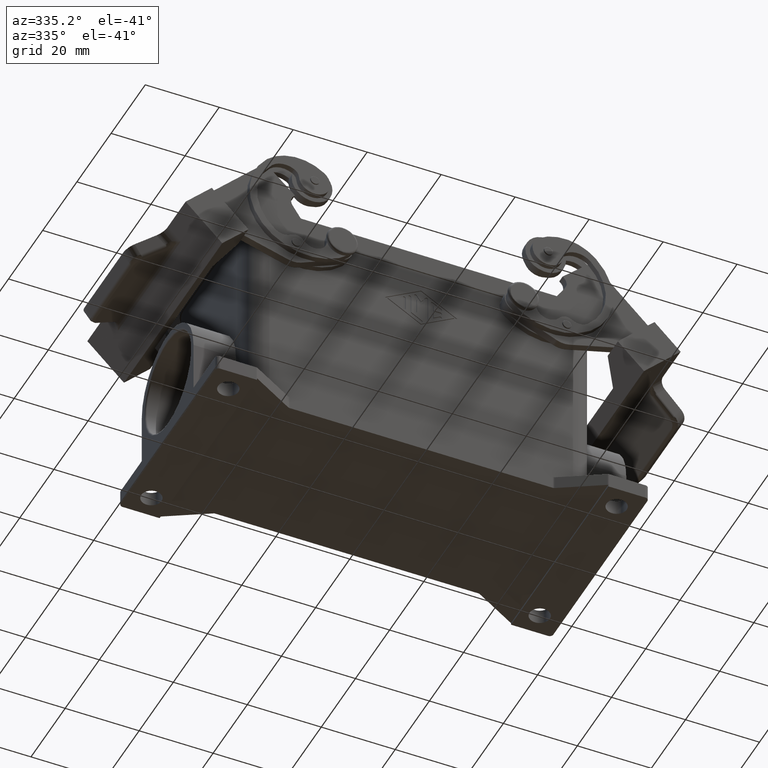
[diagram: clean part render]
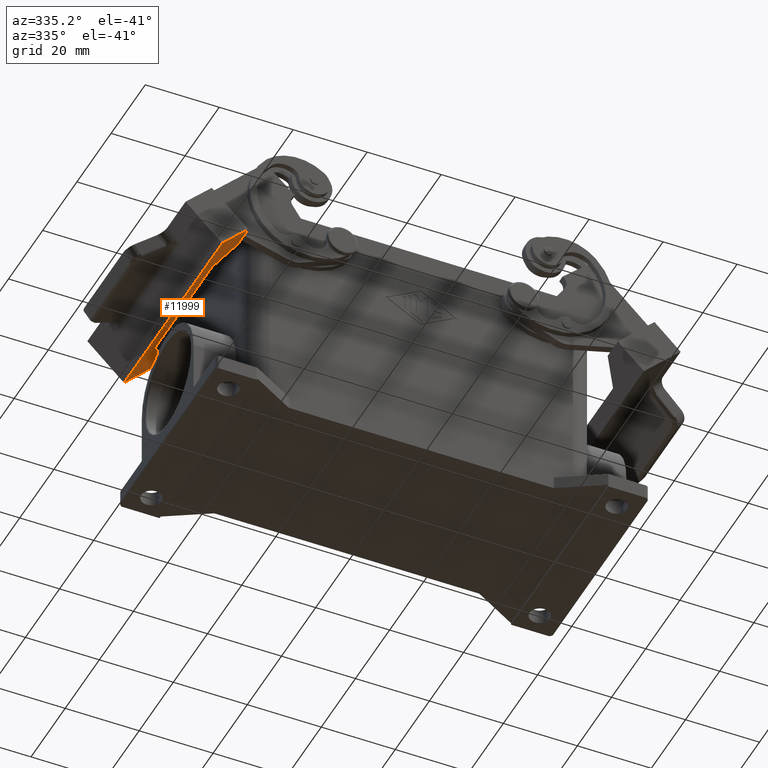
[diagram: same view with one face highlighted and labeled with its STEP entity id]
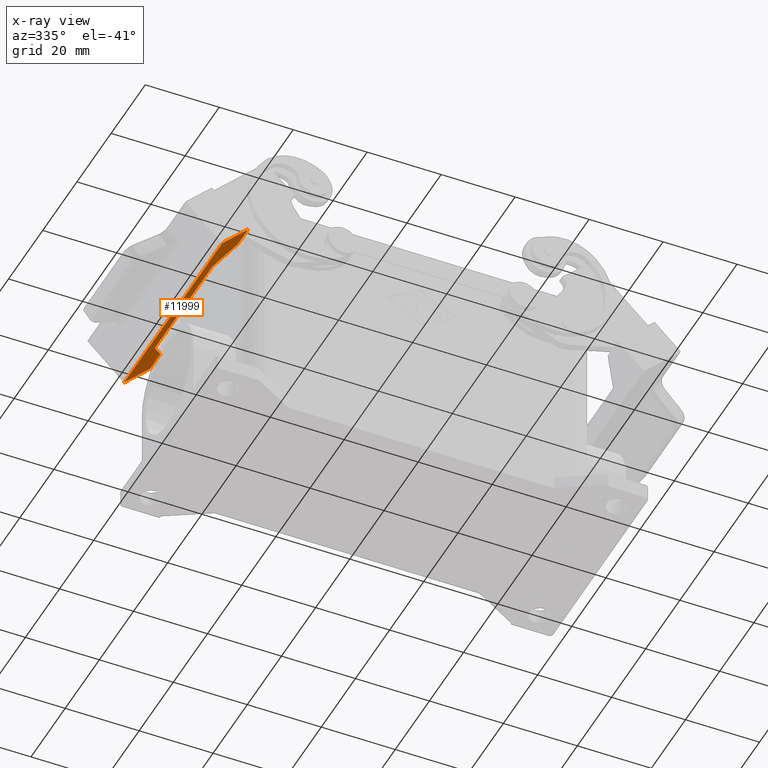
[diagram: x-ray of the same camera — body ghosted, the highlighted face saturated]
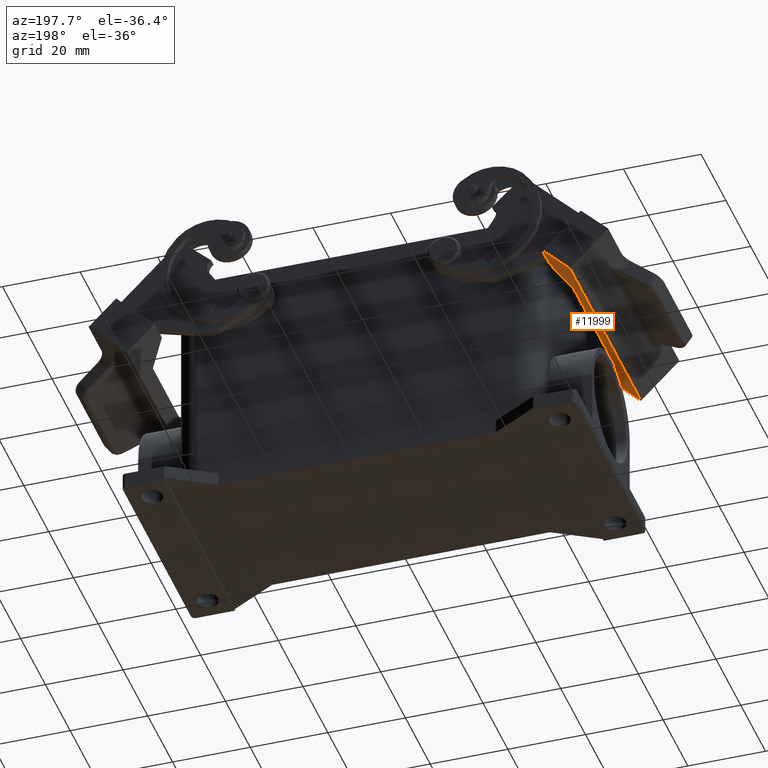
[diagram: same view with one face highlighted and labeled with its STEP entity id]
A machine part, auxiliary view. The second image highlights one B-rep face of the part: STEP entity #11999.
The next image is the same camera in x-ray: the body ghosted, the highlighted face saturated — about 2% of this face is hidden behind the body in this view.
A second angle (auxiliary view) of the same face is appended — the face is thin or edge-on in the first view.
In plain terms, the highlighted face is a freeform B-spline surface patch.
Its self-contained STEP definition (entity closure, byte-faithful):
#10776=CARTESIAN_POINT('',(-57.025786437626927,14.750000000000000,6.773650813895937));
#10777=VERTEX_POINT('',#10776);
#10784=CARTESIAN_POINT('',(-57.025000000000006,14.750000000000000,6.774437251522844));
#10785=VERTEX_POINT('',#10784);
#10786=CARTESIAN_POINT('',(-57.025786437626927,14.750000000000000,6.773650813895937));
#10787=DIRECTION('',(0.707106781192936,0.0,0.707106781180159));
#10788=VECTOR('',#10787,0.001112190757942);
#10789=LINE('',#10786,#10788);
#10790=EDGE_CURVE('',#10777,#10785,#10789,.T.);
#10833=CARTESIAN_POINT('',(-57.025786437626927,28.750000000000004,6.773650813895939));
#10834=VERTEX_POINT('',#10833);
#10841=CARTESIAN_POINT('',(-57.025786437626927,28.750000000000004,6.773650813895939));
#10842=DIRECTION('',(0.0,-1.0,0.0));
#10843=VECTOR('',#10842,14.000000000000004);
#10844=LINE('',#10841,#10843);
#10845=EDGE_CURVE('',#10834,#10777,#10844,.T.);
#11349=CARTESIAN_POINT('',(-57.025786437626927,-14.750000000000000,6.773650813895937));
#11350=VERTEX_POINT('',#11349);
#11357=CARTESIAN_POINT('',(-57.025786437626927,-28.750000000000004,6.773650813895939));
#11358=VERTEX_POINT('',#11357);
#11359=CARTESIAN_POINT('',(-57.025786437626927,-28.750000000000004,6.773650813895939));
#11360=DIRECTION('',(0.0,1.0,0.0));
#11361=VECTOR('',#11360,14.000000000000004);
#11362=LINE('',#11359,#11361);
#11363=EDGE_CURVE('',#11358,#11350,#11362,.T.);
#11453=CARTESIAN_POINT('',(-57.025000000000006,-14.750000000000000,6.774437251522844));
#11454=VERTEX_POINT('',#11453);
#11461=CARTESIAN_POINT('',(-57.025786437626927,-14.750000000000000,6.773650813895937));
#11462=DIRECTION('',(0.707106781192936,0.0,0.707106781180159));
#11463=VECTOR('',#11462,0.001112190757942);
#11464=LINE('',#11461,#11463);
#11465=EDGE_CURVE('',#11350,#11454,#11464,.T.);
#11495=CARTESIAN_POINT('',(-57.025000000000006,14.750000000000000,6.774437251522844));
#11496=DIRECTION('',(0.0,-1.0,0.0));
#11497=VECTOR('',#11496,29.500000000000000);
#11498=LINE('',#11495,#11497);
#11499=EDGE_CURVE('',#10785,#11454,#11498,.T.);
#11539=CARTESIAN_POINT('',(-54.197359312880735,-14.750000000000004,9.602077938642129));
#11540=VERTEX_POINT('',#11539);
#11547=CARTESIAN_POINT('',(-54.196572875253814,-14.750000000000000,9.602864376269038));
#11548=VERTEX_POINT('',#11547);
#11549=CARTESIAN_POINT('',(-54.197359312880735,-14.750000000000004,9.602077938642129));
#11550=DIRECTION('',(0.707106781192138,3.194338E-012,0.707106781180957));
#11551=VECTOR('',#11550,0.001112190757944);
#11552=LINE('',#11549,#11551);
#11553=EDGE_CURVE('',#11540,#11548,#11552,.T.);
#11570=CARTESIAN_POINT('',(-54.196572875253814,14.750000000000000,9.602864376269038));
#11571=VERTEX_POINT('',#11570);
#11580=CARTESIAN_POINT('',(-54.196572875253814,-14.750000000000000,9.602864376269038));
#11581=DIRECTION('',(0.0,1.0,0.0));
#11582=VECTOR('',#11581,29.500000000000000);
#11583=LINE('',#11580,#11582);
#11584=EDGE_CURVE('',#11548,#11571,#11583,.T.);
#11594=CARTESIAN_POINT('',(-54.197359312880735,14.750000000000004,9.602077938642129));
#11595=VERTEX_POINT('',#11594);
#11604=CARTESIAN_POINT('',(-54.196572875253814,14.750000000000000,9.602864376269038));
#11605=DIRECTION('',(-0.707106781192138,3.194338E-012,-0.707106781180957));
#11606=VECTOR('',#11605,0.001112190757944);
#11607=LINE('',#11604,#11606);
#11608=EDGE_CURVE('',#11571,#11595,#11607,.T.);
#11620=CARTESIAN_POINT('',(-49.954718625761444,24.250000000000004,13.844718625761413));
#11621=VERTEX_POINT('',#11620);
#11636=CARTESIAN_POINT('',(-49.954718625761444,26.250000000000004,13.844718625761409));
#11637=VERTEX_POINT('',#11636);
#11644=CARTESIAN_POINT('',(-49.954718625761451,28.750000000000007,13.844718625761409));
#11645=VERTEX_POINT('',#11644);
#11646=CARTESIAN_POINT('',(-49.954718625761444,26.250000000000004,13.844718625761409));
#11647=DIRECTION('',(0.0,1.0,0.0));
#11648=VECTOR('',#11647,2.500000000000004);
#11649=LINE('',#11646,#11648);
#11650=EDGE_CURVE('',#11637,#11645,#11649,.T.);
#11659=CARTESIAN_POINT('',(-49.954718625761444,22.750000000000004,13.844718625761416));
#11660=VERTEX_POINT('',#11659);
#11667=CARTESIAN_POINT('',(-49.954718625761444,22.750000000000004,13.844718625761416));
#11668=DIRECTION('',(0.0,1.0,0.0));
#11669=VECTOR('',#11668,1.500000000000000);
#11670=LINE('',#11667,#11669);
#11671=EDGE_CURVE('',#11660,#11621,#11670,.T.);
#11681=CARTESIAN_POINT('',(-54.197359312880735,16.750000000000004,9.602077938642129));
#11682=VERTEX_POINT('',#11681);
#11683=CARTESIAN_POINT('',(-54.197359312880735,14.750000000000004,9.602077938642129));
#11684=DIRECTION('',(0.0,1.0,0.0));
#11685=VECTOR('',#11684,2.0);
#11686=LINE('',#11683,#11685);
#11687=EDGE_CURVE('',#11595,#11682,#11686,.T.);
#11705=CARTESIAN_POINT('',(-54.197359312880735,16.750000000000004,9.602077938642129));
#11706=DIRECTION('',(0.500000000000000,0.707106781186547,0.500000000000000));
#11707=VECTOR('',#11706,8.485281374238575);
#11708=LINE('',#11705,#11707);
#11709=EDGE_CURVE('',#11682,#11660,#11708,.T.);
#11722=CARTESIAN_POINT('',(-49.954718625761451,28.750000000000007,13.844718625761409));
#11723=DIRECTION('',(-0.707106781186548,-3.552714E-016,-0.707106781186547));
#11724=VECTOR('',#11723,9.999999999999996);
#11725=LINE('',#11722,#11724);
#11726=EDGE_CURVE('',#11645,#10834,#11725,.T.);
#11739=CARTESIAN_POINT('',(-49.956067811865481,24.250000000000000,13.843369439657378));
#11740=VERTEX_POINT('',#11739);
#11741=CARTESIAN_POINT('',(-49.956067811865481,26.250000000000000,13.843369439657378));
#11742=VERTEX_POINT('',#11741);
#11743=CARTESIAN_POINT('',(-49.956067811865481,24.250000000000000,13.843369439657378));
#11744=DIRECTION('',(0.0,1.0,0.0));
#11745=VECTOR('',#11744,2.0);
#11746=LINE('',#11743,#11745);
#11747=EDGE_CURVE('',#11740,#11742,#11746,.T.);
#11858=CARTESIAN_POINT('',(-49.956067811865481,26.250000000000000,13.843369439657378));
#11859=DIRECTION('',(0.707106781187944,1.861973E-012,0.707106781185151));
#11860=VECTOR('',#11859,0.001908037286490);
#11861=LINE('',#11858,#11860);
#11862=EDGE_CURVE('',#11742,#11637,#11861,.T.);
#11909=CARTESIAN_POINT('',(-49.954718625761444,28.750000000000004,13.844718625761418));
#11910=CARTESIAN_POINT('',(-57.025786437626927,28.750000000000004,6.773650813895943));
#11911=CARTESIAN_POINT('',(-49.954718625761444,-28.750000000000011,13.844718625761420));
#11912=CARTESIAN_POINT('',(-57.025786437626920,-28.750000000000011,6.773650813895946));
#11913=B_SPLINE_SURFACE_WITH_KNOTS('',1,1,((#11909,#11911),(#11910,#11912)),.UNSPECIFIED.,.F.,.F.,.U.,(2,2),(2,2),(0.0,10.000000000000005),(0.0,57.500000000000014),.UNSPECIFIED.);
#11914=CARTESIAN_POINT('',(-49.956067811865481,-24.250000000000000,13.843369439657378));
#11915=VERTEX_POINT('',#11914);
#11916=CARTESIAN_POINT('',(-49.954718625761444,-24.250000000000004,13.844718625761413));
#11917=VERTEX_POINT('',#11916);
#11918=CARTESIAN_POINT('',(-49.956067811865481,-24.250000000000000,13.843369439657378));
#11919=DIRECTION('',(0.707106781187013,-1.861973E-012,0.707106781186082));
#11920=VECTOR('',#11919,0.001908037286492);
#11921=LINE('',#11918,#11920);
#11922=EDGE_CURVE('',#11915,#11917,#11921,.T.);
#11923=ORIENTED_EDGE('',*,*,#11922,.F.);
#11924=CARTESIAN_POINT('',(-49.956067811865481,-26.250000000000000,13.843369439657378));
#11925=VERTEX_POINT('',#11924);
#11926=CARTESIAN_POINT('',(-49.956067811865481,-26.250000000000000,13.843369439657378));
#11927=DIRECTION('',(0.0,1.0,0.0));
#11928=VECTOR('',#11927,2.0);
#11929=LINE('',#11926,#11928);
#11930=EDGE_CURVE('',#11925,#11915,#11929,.T.);
#11931=ORIENTED_EDGE('',*,*,#11930,.F.);
#11932=CARTESIAN_POINT('',(-49.954718625761444,-26.250000000000004,13.844718625761409));
#11933=VERTEX_POINT('',#11932);
#11934=CARTESIAN_POINT('',(-49.954718625761444,-26.250000000000004,13.844718625761409));
#11935=DIRECTION('',(-0.707106781187944,1.861973E-012,-0.707106781185151));
#11936=VECTOR('',#11935,0.001908037286490);
#11937=LINE('',#11934,#11936);
#11938=EDGE_CURVE('',#11933,#11925,#11937,.T.);
#11939=ORIENTED_EDGE('',*,*,#11938,.F.);
#11940=CARTESIAN_POINT('',(-49.954718625761451,-28.750000000000007,13.844718625761409));
#11941=VERTEX_POINT('',#11940);
#11942=CARTESIAN_POINT('',(-49.954718625761444,-26.250000000000004,13.844718625761409));
#11943=DIRECTION('',(0.0,-1.0,0.0));
#11944=VECTOR('',#11943,2.500000000000004);
#11945=LINE('',#11942,#11944);
#11946=EDGE_CURVE('',#11933,#11941,#11945,.T.);
#11947=ORIENTED_EDGE('',*,*,#11946,.T.);
#11948=CARTESIAN_POINT('',(-49.954718625761451,-28.750000000000007,13.844718625761409));
#11949=DIRECTION('',(-0.707106781186548,3.552714E-016,-0.707106781186547));
#11950=VECTOR('',#11949,9.999999999999996);
#11951=LINE('',#11948,#11950);
#11952=EDGE_CURVE('',#11941,#11358,#11951,.T.);
#11953=ORIENTED_EDGE('',*,*,#11952,.T.);
#11954=ORIENTED_EDGE('',*,*,#11363,.T.);
#11955=ORIENTED_EDGE('',*,*,#11465,.T.);
#11956=ORIENTED_EDGE('',*,*,#11499,.F.);
#11957=ORIENTED_EDGE('',*,*,#10790,.F.);
#11958=ORIENTED_EDGE('',*,*,#10845,.F.);
#11959=ORIENTED_EDGE('',*,*,#11726,.F.);
#11960=ORIENTED_EDGE('',*,*,#11650,.F.);
#11961=ORIENTED_EDGE('',*,*,#11862,.F.);
#11962=ORIENTED_EDGE('',*,*,#11747,.F.);
#11963=CARTESIAN_POINT('',(-49.954718625761444,24.250000000000004,13.844718625761413));
#11964=DIRECTION('',(-0.707106781187013,-1.861973E-012,-0.707106781186082));
#11965=VECTOR('',#11964,0.001908037286492);
#11966=LINE('',#11963,#11965);
#11967=EDGE_CURVE('',#11621,#11740,#11966,.T.);
#11968=ORIENTED_EDGE('',*,*,#11967,.F.);
#11969=ORIENTED_EDGE('',*,*,#11671,.F.);
#11970=ORIENTED_EDGE('',*,*,#11709,.F.);
#11971=ORIENTED_EDGE('',*,*,#11687,.F.);
#11972=ORIENTED_EDGE('',*,*,#11608,.F.);
#11973=ORIENTED_EDGE('',*,*,#11584,.F.);
#11974=ORIENTED_EDGE('',*,*,#11553,.F.);
#11975=CARTESIAN_POINT('',(-54.197359312880735,-16.750000000000004,9.602077938642129));
#11976=VERTEX_POINT('',#11975);
#11977=CARTESIAN_POINT('',(-54.197359312880735,-14.750000000000004,9.602077938642129));
#11978=DIRECTION('',(0.0,-1.0,0.0));
#11979=VECTOR('',#11978,2.0);
#11980=LINE('',#11977,#11979);
#11981=EDGE_CURVE('',#11540,#11976,#11980,.T.);
#11982=ORIENTED_EDGE('',*,*,#11981,.T.);
#11983=CARTESIAN_POINT('',(-49.954718625761444,-22.750000000000004,13.844718625761416));
#11984=VERTEX_POINT('',#11983);
#11985=CARTESIAN_POINT('',(-54.197359312880735,-16.750000000000004,9.602077938642129));
#11986=DIRECTION('',(0.500000000000000,-0.707106781186547,0.500000000000000));
#11987=VECTOR('',#11986,8.485281374238575);
#11988=LINE('',#11985,#11987);
#11989=EDGE_CURVE('',#11976,#11984,#11988,.T.);
#11990=ORIENTED_EDGE('',*,*,#11989,.T.);
#11991=CARTESIAN_POINT('',(-49.954718625761444,-22.750000000000004,13.844718625761416));
#11992=DIRECTION('',(0.0,-1.0,0.0));
#11993=VECTOR('',#11992,1.500000000000000);
#11994=LINE('',#11991,#11993);
#11995=EDGE_CURVE('',#11984,#11917,#11994,.T.);
#11996=ORIENTED_EDGE('',*,*,#11995,.T.);
#11997=EDGE_LOOP('',(#11923,#11931,#11939,#11947,#11953,#11954,#11955,#11956,#11957,#11958,#11959,#11960,#11961,#11962,#11968,#11969,#11970,#11971,#11972,#11973,#11974,#11982,#11990,#11996));
#11998=FACE_OUTER_BOUND('',#11997,.T.);
#11999=ADVANCED_FACE('',(#11998),#11913,.F.);